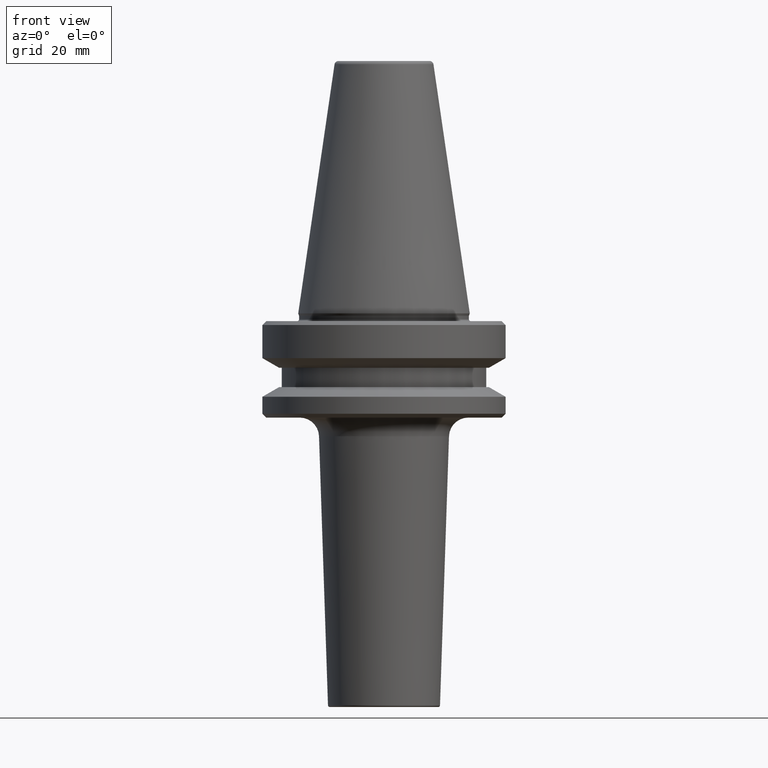
[diagram: clean part render]
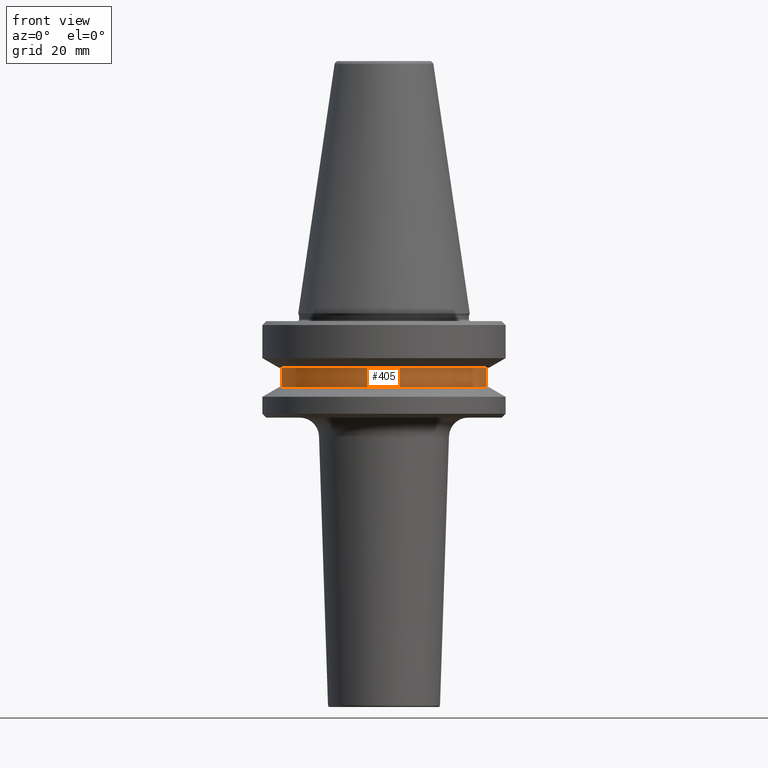
[diagram: same view with one face highlighted and labeled with its STEP entity id]
A machine part, front view. The second image highlights one B-rep face of the part: STEP entity #405.
In plain terms, the highlighted cylindrical surface (partial cylindrical patch) has radius 26.5 mm, axis along (-0, -0, 1).
Its self-contained STEP definition (entity closure, byte-faithful):
#25 = CARTESIAN_POINT ( 'NONE',  ( -26.50000000000019200, 3.245314017740509400E-015, -84.50000000000068200 ) ) ;
#48 = CARTESIAN_POINT ( 'NONE',  ( 26.50000000000019200, 0.0000000000000000000, 6.357346922996331500 ) ) ;
#87 = CARTESIAN_POINT ( 'NONE',  ( 26.50000000000019200, 0.0000000000000000000, -79.50000000000012800 ) ) ;
#111 = AXIS2_PLACEMENT_3D ( 'NONE', #889, #246, #965 ) ;
#122 = CARTESIAN_POINT ( 'NONE',  ( 0.0000000000000000000, 0.0000000000000000000, -84.50000000000068200 ) ) ;
#140 = CYLINDRICAL_SURFACE ( 'NONE', #111, 26.50000000000019200 ) ;
#165 = EDGE_CURVE ( 'NONE', #793, #704, #431, .T. ) ;
#187 = FACE_OUTER_BOUND ( 'NONE', #795, .T. ) ;
#202 = DIRECTION ( 'NONE',  ( 1.000000000000000000, 0.0000000000000000000, 0.0000000000000000000 ) ) ;
#246 = DIRECTION ( 'NONE',  ( -0.0000000000000000000, -0.0000000000000000000, 1.000000000000000000 ) ) ;
#257 = ORIENTED_EDGE ( 'NONE', *, *, #930, .T. ) ;
#261 = ORIENTED_EDGE ( 'NONE', *, *, #277, .T. ) ;
#275 = CARTESIAN_POINT ( 'NONE',  ( 26.50000000000019200, 0.0000000000000000000, -84.50000000000068200 ) ) ;
#277 = EDGE_CURVE ( 'NONE', #858, #704, #890, .T. ) ;
#329 = DIRECTION ( 'NONE',  ( -0.0000000000000000000, -0.0000000000000000000, 1.000000000000000000 ) ) ;
#394 = CIRCLE ( 'NONE', #450, 26.50000000000019200 ) ;
#405 = ADVANCED_FACE ( 'NONE', ( #187 ), #140, .T. ) ;
#431 = CIRCLE ( 'NONE', #961, 26.50000000000019200 ) ;
#450 = AXIS2_PLACEMENT_3D ( 'NONE', #122, #690, #202 ) ;
#452 = DIRECTION ( 'NONE',  ( -0.0000000000000000000, -0.0000000000000000000, 1.000000000000000000 ) ) ;
#464 = ORIENTED_EDGE ( 'NONE', *, *, #165, .F. ) ;
#501 = CARTESIAN_POINT ( 'NONE',  ( -26.50000000000019200, 3.245314017740509400E-015, -79.50000000000012800 ) ) ;
#533 = ORIENTED_EDGE ( 'NONE', *, *, #728, .F. ) ;
#574 = CARTESIAN_POINT ( 'NONE',  ( -26.50000000000019200, 3.245314017740509400E-015, 6.357346922996331500 ) ) ;
#604 = LINE ( 'NONE', #574, #831 ) ;
#656 = DIRECTION ( 'NONE',  ( -0.0000000000000000000, -0.0000000000000000000, 1.000000000000000000 ) ) ;
#690 = DIRECTION ( 'NONE',  ( -0.0000000000000000000, -0.0000000000000000000, 1.000000000000000000 ) ) ;
#704 = VERTEX_POINT ( 'NONE', #87 ) ;
#728 = EDGE_CURVE ( 'NONE', #867, #793, #604, .T. ) ;
#793 = VERTEX_POINT ( 'NONE', #501 ) ;
#795 = EDGE_LOOP ( 'NONE', ( #533, #257, #261, #464 ) ) ;
#814 = CARTESIAN_POINT ( 'NONE',  ( 0.0000000000000000000, 0.0000000000000000000, -79.50000000000012800 ) ) ;
#831 = VECTOR ( 'NONE', #656, 1000.000000000000000 ) ;
#840 = VECTOR ( 'NONE', #452, 1000.000000000000000 ) ;
#858 = VERTEX_POINT ( 'NONE', #275 ) ;
#867 = VERTEX_POINT ( 'NONE', #25 ) ;
#889 = CARTESIAN_POINT ( 'NONE',  ( 0.0000000000000000000, 0.0000000000000000000, 6.357346922996331500 ) ) ;
#890 = LINE ( 'NONE', #48, #840 ) ;
#892 = DIRECTION ( 'NONE',  ( 1.000000000000000000, 0.0000000000000000000, 0.0000000000000000000 ) ) ;
#930 = EDGE_CURVE ( 'NONE', #867, #858, #394, .T. ) ;
#961 = AXIS2_PLACEMENT_3D ( 'NONE', #814, #329, #892 ) ;
#965 = DIRECTION ( 'NONE',  ( 1.000000000000000000, 0.0000000000000000000, 0.0000000000000000000 ) ) ;